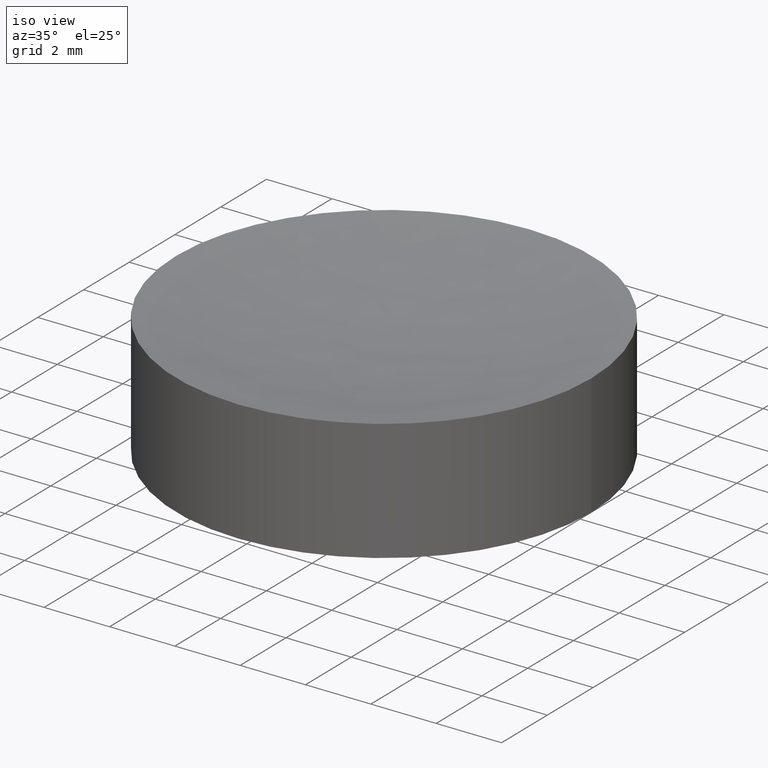
[diagram: clean part render]
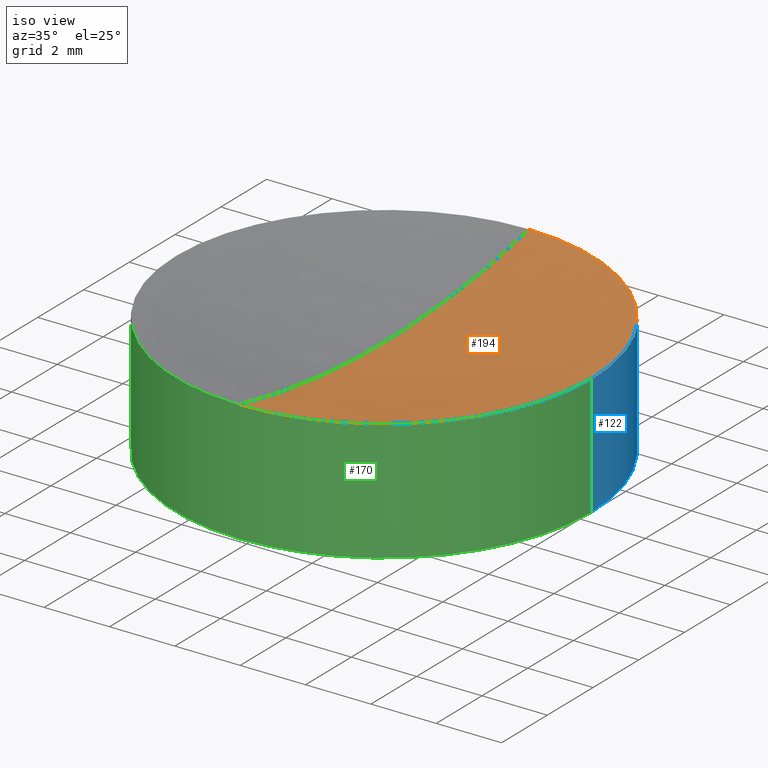
[diagram: same view with three faces highlighted in distinct colors, each labeled with its STEP entity id]
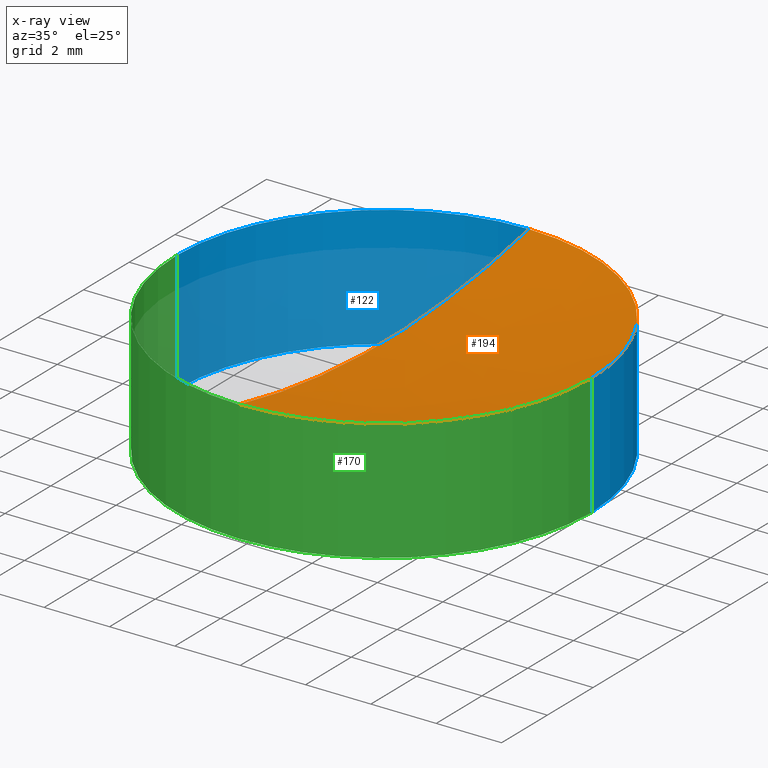
[diagram: x-ray of the same camera — body ghosted, the three highlighted faces saturated]
A machine part, iso view with three faces highlighted in distinct colors.
The next image is the same camera in x-ray (body ghosted, the three faces saturated) — at least one of them is partly hidden behind the body in this view.
Their STEP definitions:

[orange] entity #194 — the highlighted face is a freeform B-spline surface patch.
#1 = DIRECTION ( 'NONE',  ( 1.000000000000000000, 0.0000000000000000000, 0.0000000000000000000 ) ) ;
#9 = CARTESIAN_POINT ( 'NONE',  ( 6.441541557281147400, 2.177902016982218300, 2.775102109609572000 ) ) ;
#13 = CARTESIAN_POINT ( 'NONE',  ( 1.040834085586084300E-014, -6.424929541777834700, 3.022462348102943800 ) ) ;
#14 = CARTESIAN_POINT ( 'NONE',  ( 4.325579220855164700, -2.177902016982220500, 2.296096373014305600 ) ) ;
#15 = CARTESIAN_POINT ( 'NONE',  ( 2.097568141156078300, 6.424929541777832900, 3.022462348102940200 ) ) ;
#36 = CARTESIAN_POINT ( 'NONE',  ( 3.552713678800499400E-015, -6.350000000000000500, 3.005500004428780500 ) ) ;
#40 = CARTESIAN_POINT ( 'NONE',  ( 6.227957547520616400, -6.424929541777834700, 3.718589182496089100 ) ) ;
#49 =( BOUNDED_SURFACE ( )  B_SPLINE_SURFACE ( 3, 3, ( 
 ( #65, #153, #15, #155 ),
 ( #9, #152, #87, #63 ),
 ( #183, #14, #180, #182 ),
 ( #40, #229, #134, #13 ) ),
 .UNSPECIFIED., .F., .F., .F. ) 
 B_SPLINE_SURFACE_WITH_KNOTS ( ( 4, 4 ),
 ( 4, 4 ),
 ( 0.0000000000000000000, 1.000000000000000000 ),
 ( 0.0000000000000000000, 1.000000000000000000 ),
 .UNSPECIFIED. ) 
 GEOMETRIC_REPRESENTATION_ITEM ( )  RATIONAL_B_SPLINE_SURFACE ( (
 ( 1.000000000000000000, 0.9958741073760455400, 0.9958741073760455400, 1.000000000000000000),
 ( 0.9833514840856564200, 0.9792942814507127300, 0.9792942814507127300, 0.9833514840856564200),
 ( 0.9833514840856564200, 0.9792942814507127300, 0.9792942814507127300, 0.9833514840856564200),
 ( 1.000000000000000000, 0.9958741073760455400, 0.9958741073760455400, 1.000000000000000000) ) ) 
 REPRESENTATION_ITEM ( '' )  SURFACE ( )  );
#63 = CARTESIAN_POINT ( 'NONE',  ( 1.040834085586084400E-014, 2.177902016982219200, 2.055102029540437400 ) ) ;
#65 = CARTESIAN_POINT ( 'NONE',  ( 6.227957547520617300, 6.424929541777832900, 3.718589182496085500 ) ) ;
#66 = CARTESIAN_POINT ( 'NONE',  ( 6.349999999999999600, 1.221245327087670000E-015, 3.005500004428780100 ) ) ;
#69 = ORIENTED_EDGE ( 'NONE', *, *, #293, .T. ) ;
#71 = EDGE_CURVE ( 'NONE', #272, #287, #85, .T. ) ;
#81 = EDGE_CURVE ( 'NONE', #223, #272, #128, .T. ) ;
#85 = CIRCLE ( 'NONE', #162, 6.349999999999999600 ) ;
#87 = CARTESIAN_POINT ( 'NONE',  ( 2.169502962630963000, 2.177902016982219200, 2.055102029540437900 ) ) ;
#92 = ORIENTED_EDGE ( 'NONE', *, *, #71, .F. ) ;
#100 = CARTESIAN_POINT ( 'NONE',  ( 2.498001805406600200E-016, 1.221245327087670000E-015, 3.005500004428780100 ) ) ;
#108 = DIRECTION ( 'NONE',  ( -0.0000000000000000000, -0.0000000000000000000, -1.000000000000000000 ) ) ;
#113 = DIRECTION ( 'NONE',  ( -1.000000000000000000, 0.0000000000000000000, 0.0000000000000000000 ) ) ;
#126 = AXIS2_PLACEMENT_3D ( 'NONE', #246, #113, #138 ) ;
#127 = CARTESIAN_POINT ( 'NONE',  ( 2.498001805406600200E-016, 1.221245327087670000E-015, 3.005500004428780100 ) ) ;
#128 = CIRCLE ( 'NONE', #233, 6.349999999999999600 ) ;
#134 = CARTESIAN_POINT ( 'NONE',  ( 2.097568141156077800, -6.424929541777834700, 3.022462348102943800 ) ) ;
#138 = DIRECTION ( 'NONE',  ( 0.0000000000000000000, 1.000000000000000000, 2.398511546459463900E-016 ) ) ;
#144 = DIRECTION ( 'NONE',  ( -0.0000000000000000000, -0.0000000000000000000, -1.000000000000000000 ) ) ;
#152 = CARTESIAN_POINT ( 'NONE',  ( 4.325579220855165600, 2.177902016982218700, 2.296096373014302500 ) ) ;
#153 = CARTESIAN_POINT ( 'NONE',  ( 4.182154770929389400, 6.424929541777832900, 3.255465974176158000 ) ) ;
#155 = CARTESIAN_POINT ( 'NONE',  ( 1.040834085586084300E-014, 6.424929541777832900, 3.022462348102939800 ) ) ;
#162 = AXIS2_PLACEMENT_3D ( 'NONE', #100, #144, #1 ) ;
#165 = FACE_OUTER_BOUND ( 'NONE', #232, .T. ) ;
#180 = CARTESIAN_POINT ( 'NONE',  ( 2.169502962630962500, -2.177902016982220100, 2.055102029540441000 ) ) ;
#182 = CARTESIAN_POINT ( 'NONE',  ( 1.040834085586084400E-014, -2.177902016982221400, 2.055102029540440100 ) ) ;
#183 = CARTESIAN_POINT ( 'NONE',  ( 6.441541557281146500, -2.177902016982221900, 2.775102109609575200 ) ) ;
#194 = ADVANCED_FACE ( 'NONE', ( #165 ), #49, .F. ) ;
#223 = VERTEX_POINT ( 'NONE', #268 ) ;
#229 = CARTESIAN_POINT ( 'NONE',  ( 4.182154770929388500, -6.424929541777834700, 3.255465974176161600 ) ) ;
#232 = EDGE_LOOP ( 'NONE', ( #282, #69, #92 ) ) ;
#233 = AXIS2_PLACEMENT_3D ( 'NONE', #127, #108, #240 ) ;
#240 = DIRECTION ( 'NONE',  ( 1.000000000000000000, -1.776356839400250500E-015, 0.0000000000000000000 ) ) ;
#246 = CARTESIAN_POINT ( 'NONE',  ( 3.552713678800500100E-015, 0.0000000000000000000, 31.23000000000000000 ) ) ;
#268 = CARTESIAN_POINT ( 'NONE',  ( 3.552713678800499400E-015, 6.350000000000001400, 3.005500004428780500 ) ) ;
#272 = VERTEX_POINT ( 'NONE', #66 ) ;
#282 = ORIENTED_EDGE ( 'NONE', *, *, #81, .F. ) ;
#287 = VERTEX_POINT ( 'NONE', #36 ) ;
#290 = CIRCLE ( 'NONE', #126, 28.92999999999999600 ) ;
#293 = EDGE_CURVE ( 'NONE', #223, #287, #290, .T. ) ;

[blue] entity #122 — the highlighted cylindrical surface (partial cylindrical patch) has radius 6.35 mm, axis along (0, 0, 1).
#4 = CARTESIAN_POINT ( 'NONE',  ( 2.498001805406600200E-016, 1.221245327087670000E-015, -0.7055000044287750300 ) ) ;
#5 = CARTESIAN_POINT ( 'NONE',  ( -6.349999999999999600, 1.998896044546239400E-015, -0.7055000044287750300 ) ) ;
#7 = ORIENTED_EDGE ( 'NONE', *, *, #231, .F. ) ;
#10 = EDGE_CURVE ( 'NONE', #125, #206, #278, .T. ) ;
#26 = VECTOR ( 'NONE', #253, 1000.000000000000000 ) ;
#27 = AXIS2_PLACEMENT_3D ( 'NONE', #267, #288, #38 ) ;
#37 = CARTESIAN_POINT ( 'NONE',  ( 2.498001805406600200E-016, 1.221245327087670000E-015, -0.7055000044287750300 ) ) ;
#38 = DIRECTION ( 'NONE',  ( 1.000000000000000000, 0.0000000000000000000, 0.0000000000000000000 ) ) ;
#42 = DIRECTION ( 'NONE',  ( 1.000000000000000000, 0.0000000000000000000, 0.0000000000000000000 ) ) ;
#44 = AXIS2_PLACEMENT_3D ( 'NONE', #4, #225, #129 ) ;
#52 = CIRCLE ( 'NONE', #27, 6.349999999999999600 ) ;
#58 = VECTOR ( 'NONE', #203, 1000.000000000000000 ) ;
#64 = DIRECTION ( 'NONE',  ( -0.0000000000000000000, -0.0000000000000000000, -1.000000000000000000 ) ) ;
#66 = CARTESIAN_POINT ( 'NONE',  ( 6.349999999999999600, 1.221245327087670000E-015, 3.005500004428780100 ) ) ;
#81 = EDGE_CURVE ( 'NONE', #223, #272, #128, .T. ) ;
#83 = ORIENTED_EDGE ( 'NONE', *, *, #222, .T. ) ;
#86 = ORIENTED_EDGE ( 'NONE', *, *, #172, .T. ) ;
#90 = CARTESIAN_POINT ( 'NONE',  ( 6.349999999999999600, 1.221245327087670000E-015, -0.7055000044287750300 ) ) ;
#95 = EDGE_LOOP ( 'NONE', ( #83, #86, #279, #257, #139, #7 ) ) ;
#98 = CARTESIAN_POINT ( 'NONE',  ( -6.349999999999999600, 1.998896044546239400E-015, -0.7055000044287750300 ) ) ;
#106 = VERTEX_POINT ( 'NONE', #143 ) ;
#108 = DIRECTION ( 'NONE',  ( -0.0000000000000000000, -0.0000000000000000000, -1.000000000000000000 ) ) ;
#114 = DIRECTION ( 'NONE',  ( 1.000000000000000000, 8.881784197001252300E-016, 0.0000000000000000000 ) ) ;
#122 = ADVANCED_FACE ( 'NONE', ( #205 ), #123, .T. ) ;
#123 = CYLINDRICAL_SURFACE ( 'NONE', #44, 6.349999999999999600 ) ;
#125 = VERTEX_POINT ( 'NONE', #5 ) ;
#127 = CARTESIAN_POINT ( 'NONE',  ( 2.498001805406600200E-016, 1.221245327087670000E-015, 3.005500004428780100 ) ) ;
#128 = CIRCLE ( 'NONE', #233, 6.349999999999999600 ) ;
#129 = DIRECTION ( 'NONE',  ( 1.000000000000000000, 0.0000000000000000000, 0.0000000000000000000 ) ) ;
#133 = CIRCLE ( 'NONE', #251, 6.349999999999999600 ) ;
#139 = ORIENTED_EDGE ( 'NONE', *, *, #81, .T. ) ;
#143 = CARTESIAN_POINT ( 'NONE',  ( 6.349999999999999600, 1.221245327087670000E-015, -0.7055000044287750300 ) ) ;
#154 = LINE ( 'NONE', #90, #58 ) ;
#172 = EDGE_CURVE ( 'NONE', #235, #125, #52, .T. ) ;
#185 = EDGE_CURVE ( 'NONE', #206, #223, #198, .T. ) ;
#198 = CIRCLE ( 'NONE', #215, 6.349999999999999600 ) ;
#202 = CARTESIAN_POINT ( 'NONE',  ( -6.349999999999999600, 1.998896044546239400E-015, 3.005500004428780100 ) ) ;
#203 = DIRECTION ( 'NONE',  ( 0.0000000000000000000, 0.0000000000000000000, 1.000000000000000000 ) ) ;
#205 = FACE_OUTER_BOUND ( 'NONE', #95, .T. ) ;
#206 = VERTEX_POINT ( 'NONE', #202 ) ;
#215 = AXIS2_PLACEMENT_3D ( 'NONE', #289, #64, #114 ) ;
#222 = EDGE_CURVE ( 'NONE', #106, #235, #133, .T. ) ;
#223 = VERTEX_POINT ( 'NONE', #268 ) ;
#225 = DIRECTION ( 'NONE',  ( 0.0000000000000000000, 0.0000000000000000000, 1.000000000000000000 ) ) ;
#228 = CARTESIAN_POINT ( 'NONE',  ( -3.552713678800500100E-015, 6.349999999999989000, -0.7055000044287748100 ) ) ;
#231 = EDGE_CURVE ( 'NONE', #106, #272, #154, .T. ) ;
#233 = AXIS2_PLACEMENT_3D ( 'NONE', #127, #108, #240 ) ;
#235 = VERTEX_POINT ( 'NONE', #228 ) ;
#240 = DIRECTION ( 'NONE',  ( 1.000000000000000000, -1.776356839400250500E-015, 0.0000000000000000000 ) ) ;
#251 = AXIS2_PLACEMENT_3D ( 'NONE', #37, #269, #42 ) ;
#253 = DIRECTION ( 'NONE',  ( 0.0000000000000000000, 0.0000000000000000000, 1.000000000000000000 ) ) ;
#257 = ORIENTED_EDGE ( 'NONE', *, *, #185, .T. ) ;
#267 = CARTESIAN_POINT ( 'NONE',  ( 2.498001805406600200E-016, 1.221245327087670000E-015, -0.7055000044287750300 ) ) ;
#268 = CARTESIAN_POINT ( 'NONE',  ( 3.552713678800499400E-015, 6.350000000000001400, 3.005500004428780500 ) ) ;
#269 = DIRECTION ( 'NONE',  ( 0.0000000000000000000, 0.0000000000000000000, 1.000000000000000000 ) ) ;
#272 = VERTEX_POINT ( 'NONE', #66 ) ;
#278 = LINE ( 'NONE', #98, #26 ) ;
#279 = ORIENTED_EDGE ( 'NONE', *, *, #10, .T. ) ;
#288 = DIRECTION ( 'NONE',  ( 0.0000000000000000000, 0.0000000000000000000, 1.000000000000000000 ) ) ;
#289 = CARTESIAN_POINT ( 'NONE',  ( 2.498001805406600200E-016, 1.221245327087670000E-015, 3.005500004428780100 ) ) ;

[green] entity #170 — the highlighted cylindrical surface (partial cylindrical patch) has radius 6.35 mm, axis along (0, 0, 1).
#1 = DIRECTION ( 'NONE',  ( 1.000000000000000000, 0.0000000000000000000, 0.0000000000000000000 ) ) ;
#5 = CARTESIAN_POINT ( 'NONE',  ( -6.349999999999999600, 1.998896044546239400E-015, -0.7055000044287750300 ) ) ;
#6 = AXIS2_PLACEMENT_3D ( 'NONE', #239, #60, #262 ) ;
#10 = EDGE_CURVE ( 'NONE', #125, #206, #278, .T. ) ;
#26 = VECTOR ( 'NONE', #253, 1000.000000000000000 ) ;
#30 = DIRECTION ( 'NONE',  ( 0.0000000000000000000, 0.0000000000000000000, 1.000000000000000000 ) ) ;
#35 = DIRECTION ( 'NONE',  ( 1.000000000000000000, 0.0000000000000000000, 0.0000000000000000000 ) ) ;
#36 = CARTESIAN_POINT ( 'NONE',  ( 3.552713678800499400E-015, -6.350000000000000500, 3.005500004428780500 ) ) ;
#48 = ORIENTED_EDGE ( 'NONE', *, *, #243, .T. ) ;
#54 = EDGE_CURVE ( 'NONE', #156, #106, #177, .T. ) ;
#58 = VECTOR ( 'NONE', #203, 1000.000000000000000 ) ;
#60 = DIRECTION ( 'NONE',  ( 0.0000000000000000000, 0.0000000000000000000, 1.000000000000000000 ) ) ;
#61 = ORIENTED_EDGE ( 'NONE', *, *, #71, .T. ) ;
#66 = CARTESIAN_POINT ( 'NONE',  ( 6.349999999999999600, 1.221245327087670000E-015, 3.005500004428780100 ) ) ;
#71 = EDGE_CURVE ( 'NONE', #272, #287, #85, .T. ) ;
#76 = CYLINDRICAL_SURFACE ( 'NONE', #151, 6.349999999999999600 ) ;
#85 = CIRCLE ( 'NONE', #162, 6.349999999999999600 ) ;
#90 = CARTESIAN_POINT ( 'NONE',  ( 6.349999999999999600, 1.221245327087670000E-015, -0.7055000044287750300 ) ) ;
#98 = CARTESIAN_POINT ( 'NONE',  ( -6.349999999999999600, 1.998896044546239400E-015, -0.7055000044287750300 ) ) ;
#100 = CARTESIAN_POINT ( 'NONE',  ( 2.498001805406600200E-016, 1.221245327087670000E-015, 3.005500004428780100 ) ) ;
#106 = VERTEX_POINT ( 'NONE', #143 ) ;
#111 = DIRECTION ( 'NONE',  ( -0.0000000000000000000, -0.0000000000000000000, -1.000000000000000000 ) ) ;
#112 = EDGE_CURVE ( 'NONE', #125, #156, #286, .T. ) ;
#125 = VERTEX_POINT ( 'NONE', #5 ) ;
#137 = EDGE_LOOP ( 'NONE', ( #227, #230, #218, #210, #61, #48 ) ) ;
#143 = CARTESIAN_POINT ( 'NONE',  ( 6.349999999999999600, 1.221245327087670000E-015, -0.7055000044287750300 ) ) ;
#144 = DIRECTION ( 'NONE',  ( -0.0000000000000000000, -0.0000000000000000000, -1.000000000000000000 ) ) ;
#146 = CARTESIAN_POINT ( 'NONE',  ( 2.498001805406600200E-016, 1.221245327087670000E-015, -0.7055000044287750300 ) ) ;
#150 = DIRECTION ( 'NONE',  ( 1.000000000000000000, 0.0000000000000000000, 0.0000000000000000000 ) ) ;
#151 = AXIS2_PLACEMENT_3D ( 'NONE', #146, #175, #35 ) ;
#154 = LINE ( 'NONE', #90, #58 ) ;
#156 = VERTEX_POINT ( 'NONE', #258 ) ;
#162 = AXIS2_PLACEMENT_3D ( 'NONE', #100, #144, #1 ) ;
#170 = ADVANCED_FACE ( 'NONE', ( #200 ), #76, .T. ) ;
#175 = DIRECTION ( 'NONE',  ( 0.0000000000000000000, 0.0000000000000000000, 1.000000000000000000 ) ) ;
#177 = CIRCLE ( 'NONE', #179, 6.349999999999999600 ) ;
#179 = AXIS2_PLACEMENT_3D ( 'NONE', #195, #30, #196 ) ;
#181 = CIRCLE ( 'NONE', #265, 6.349999999999999600 ) ;
#195 = CARTESIAN_POINT ( 'NONE',  ( 2.498001805406600200E-016, 1.221245327087670000E-015, -0.7055000044287750300 ) ) ;
#196 = DIRECTION ( 'NONE',  ( 1.000000000000000000, 0.0000000000000000000, 0.0000000000000000000 ) ) ;
#200 = FACE_OUTER_BOUND ( 'NONE', #137, .T. ) ;
#202 = CARTESIAN_POINT ( 'NONE',  ( -6.349999999999999600, 1.998896044546239400E-015, 3.005500004428780100 ) ) ;
#203 = DIRECTION ( 'NONE',  ( 0.0000000000000000000, 0.0000000000000000000, 1.000000000000000000 ) ) ;
#206 = VERTEX_POINT ( 'NONE', #202 ) ;
#210 = ORIENTED_EDGE ( 'NONE', *, *, #231, .T. ) ;
#218 = ORIENTED_EDGE ( 'NONE', *, *, #54, .T. ) ;
#227 = ORIENTED_EDGE ( 'NONE', *, *, #10, .F. ) ;
#230 = ORIENTED_EDGE ( 'NONE', *, *, #112, .T. ) ;
#231 = EDGE_CURVE ( 'NONE', #106, #272, #154, .T. ) ;
#239 = CARTESIAN_POINT ( 'NONE',  ( 2.498001805406600200E-016, 1.221245327087670000E-015, -0.7055000044287750300 ) ) ;
#243 = EDGE_CURVE ( 'NONE', #287, #206, #181, .T. ) ;
#245 = CARTESIAN_POINT ( 'NONE',  ( 2.498001805406600200E-016, 1.221245327087670000E-015, 3.005500004428780100 ) ) ;
#253 = DIRECTION ( 'NONE',  ( 0.0000000000000000000, 0.0000000000000000000, 1.000000000000000000 ) ) ;
#258 = CARTESIAN_POINT ( 'NONE',  ( -3.552713678800500100E-015, -6.349999999999987200, -0.7055000044287748100 ) ) ;
#262 = DIRECTION ( 'NONE',  ( 1.000000000000000000, 0.0000000000000000000, 0.0000000000000000000 ) ) ;
#265 = AXIS2_PLACEMENT_3D ( 'NONE', #245, #111, #150 ) ;
#272 = VERTEX_POINT ( 'NONE', #66 ) ;
#278 = LINE ( 'NONE', #98, #26 ) ;
#286 = CIRCLE ( 'NONE', #6, 6.349999999999999600 ) ;
#287 = VERTEX_POINT ( 'NONE', #36 ) ;